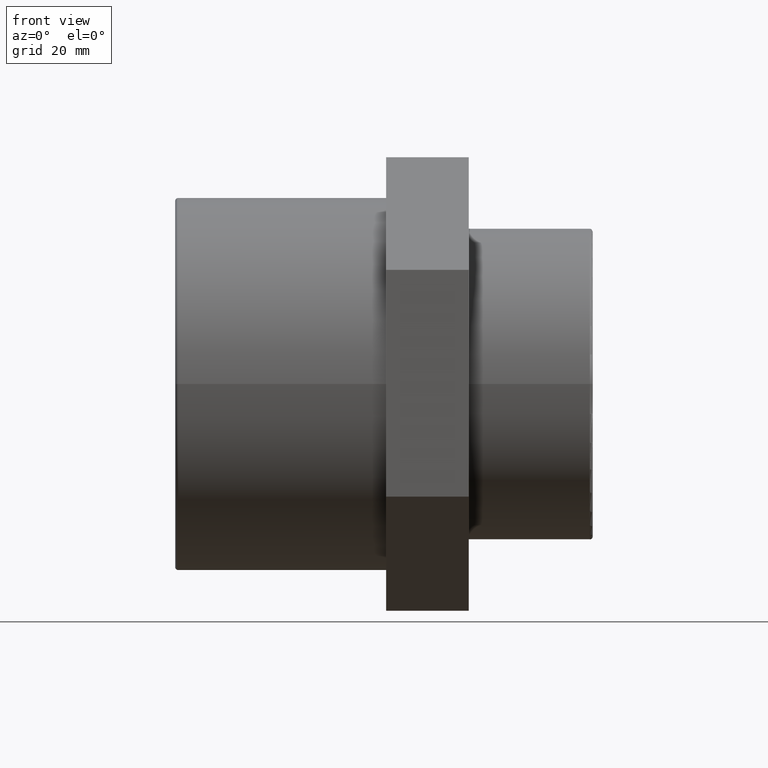
[diagram: clean part render]
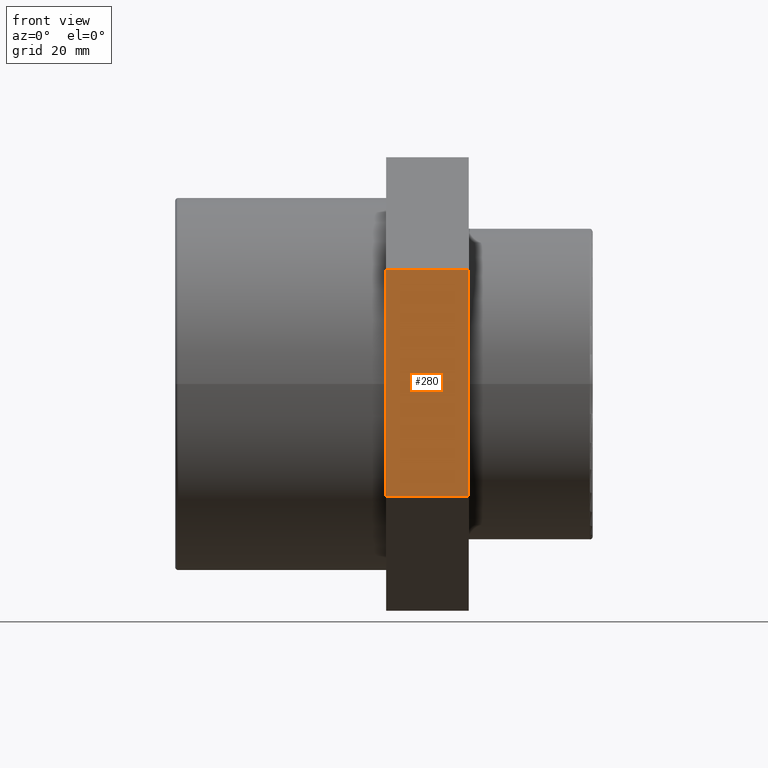
[diagram: same view with one face highlighted and labeled with its STEP entity id]
A machine part, front view. The second image highlights one B-rep face of the part: STEP entity #280.
In plain terms, the highlighted planar face has unit normal (0, -1, 0.0036).
Its self-contained STEP definition (entity closure, byte-faithful):
#53=FACE_OUTER_BOUND('',#74,.T.);
#74=EDGE_LOOP('',(#204,#205,#206,#207));
#110=LINE('',#432,#128);
#111=LINE('',#434,#129);
#112=LINE('',#436,#130);
#113=LINE('',#437,#131);
#128=VECTOR('',#342,54.8482755730145);
#129=VECTOR('',#343,20.);
#130=VECTOR('',#344,54.8482755730145);
#131=VECTOR('',#345,20.);
#146=VERTEX_POINT('',#430);
#147=VERTEX_POINT('',#431);
#148=VERTEX_POINT('',#433);
#149=VERTEX_POINT('',#435);
#172=EDGE_CURVE('',#146,#147,#110,.T.);
#173=EDGE_CURVE('',#148,#147,#111,.T.);
#174=EDGE_CURVE('',#148,#149,#112,.T.);
#175=EDGE_CURVE('',#149,#146,#113,.T.);
#204=ORIENTED_EDGE('',*,*,#172,.T.);
#205=ORIENTED_EDGE('',*,*,#173,.F.);
#206=ORIENTED_EDGE('',*,*,#174,.T.);
#207=ORIENTED_EDGE('',*,*,#175,.T.);
#268=PLANE('',#303);
#280=ADVANCED_FACE('',(#53),#268,.T.);
#303=AXIS2_PLACEMENT_3D('',#429,#340,#341);
#340=DIRECTION('center_axis',(5.92115068328431E-16,-0.999993450406666,0.00361927392861262));
#341=DIRECTION('ref_axis',(0.,-0.0036192739286129,-0.999993450406666));
#342=DIRECTION('',(-2.4377827275521E-18,0.00361927392861262,0.999993450406666));
#343=DIRECTION('',(1.,5.92118946466736E-16,0.));
#344=DIRECTION('',(2.4377827275521E-18,-0.00361927392861262,-0.999993450406666));
#345=DIRECTION('',(1.,5.92118946466736E-16,0.));
#429=CARTESIAN_POINT('Origin',(0.500000000000004,-47.4004334274113,27.5958736811663));
#430=CARTESIAN_POINT('',(20.5,-47.5989443612221,-27.2520426579481));
#431=CARTESIAN_POINT('',(20.5,-47.4004334274113,27.5958736811663));
#432=CARTESIAN_POINT('',(20.5,-47.450061160864,13.8838945963877));
#433=CARTESIAN_POINT('',(0.500000000000004,-47.4004334274113,27.5958736811663));
#434=CARTESIAN_POINT('',(0.500000000000004,-47.4004334274113,27.5958736811663));
#435=CARTESIAN_POINT('',(0.500000000000004,-47.5989443612221,-27.2520426579481));
#436=CARTESIAN_POINT('',(0.500000000000004,-47.4004334274113,27.5958736811663));
#437=CARTESIAN_POINT('',(0.500000000000004,-47.5989443612221,-27.2520426579481));